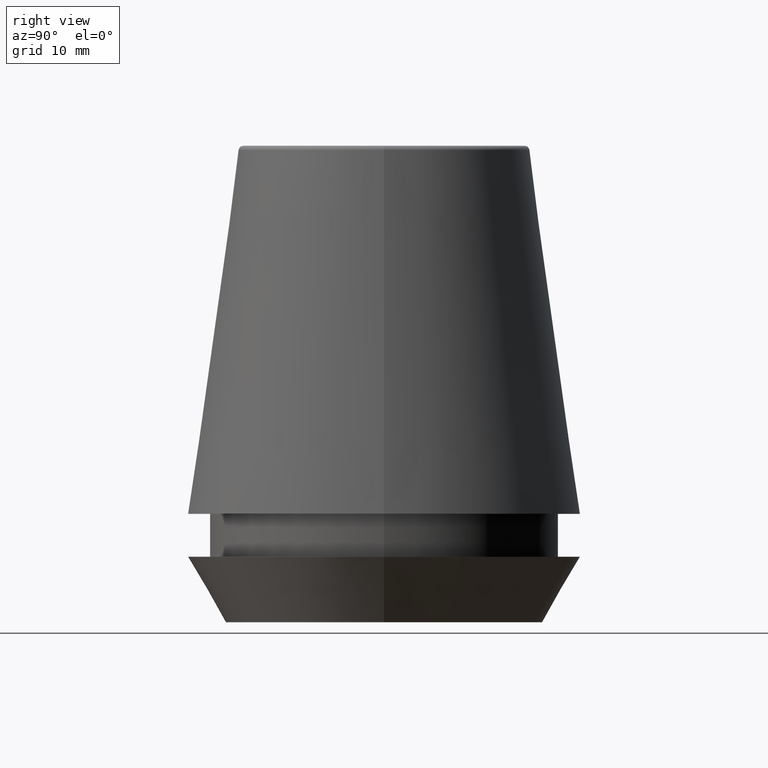
[diagram: clean part render]
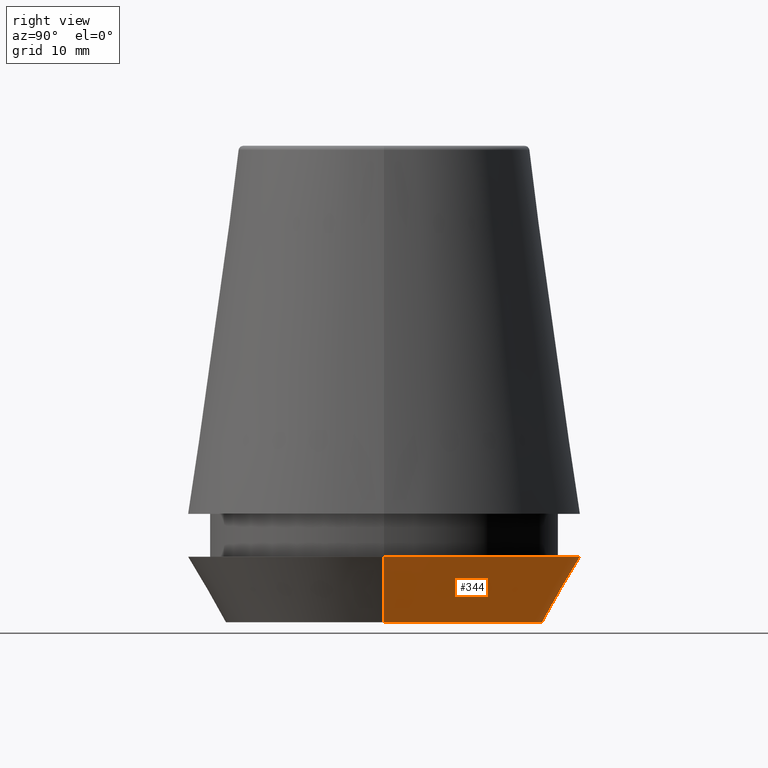
[diagram: same view with one face highlighted and labeled with its STEP entity id]
A machine part, right view. The second image highlights one B-rep face of the part: STEP entity #344.
In plain terms, the highlighted conical surface has half-angle 30 deg.
Its self-contained STEP definition (entity closure, byte-faithful):
#2 = DIRECTION ( 'NONE',  ( -0.0000000000000000000, -0.0000000000000000000, 1.000000000000000000 ) ) ;
#18 = DIRECTION ( 'NONE',  ( -0.0000000000000000000, -0.0000000000000000000, 1.000000000000000000 ) ) ;
#23 = CONICAL_SURFACE ( 'NONE', #377, 13.32457351945710200, 0.5235987755982927100 ) ;
#30 = DIRECTION ( 'NONE',  ( 1.000000000000000000, 0.0000000000000000000, 0.0000000000000000000 ) ) ;
#37 = LINE ( 'NONE', #225, #98 ) ;
#39 = ORIENTED_EDGE ( 'NONE', *, *, #368, .T. ) ;
#51 = AXIS2_PLACEMENT_3D ( 'NONE', #218, #2, #155 ) ;
#59 = DIRECTION ( 'NONE',  ( -0.4999999999999947300, 6.123233995736700700E-017, 0.8660254037844418200 ) ) ;
#74 = CARTESIAN_POINT ( 'NONE',  ( 13.32457351945710200, 0.0000000000000000000, 0.0000000000000000000 ) ) ;
#98 = VECTOR ( 'NONE', #169, 999.9999999999998900 ) ;
#113 = CARTESIAN_POINT ( 'NONE',  ( -16.50000000000000000, 2.020667218593133100E-015, 5.500000000000005300 ) ) ;
#133 = AXIS2_PLACEMENT_3D ( 'NONE', #192, #18, #254 ) ;
#135 = DIRECTION ( 'NONE',  ( -0.0000000000000000000, -0.0000000000000000000, 1.000000000000000000 ) ) ;
#153 = ORIENTED_EDGE ( 'NONE', *, *, #256, .F. ) ;
#155 = DIRECTION ( 'NONE',  ( 1.000000000000000000, 0.0000000000000000000, 0.0000000000000000000 ) ) ;
#166 = VERTEX_POINT ( 'NONE', #113 ) ;
#169 = DIRECTION ( 'NONE',  ( 0.4999999999999947300, 0.0000000000000000000, 0.8660254037844418200 ) ) ;
#174 = CARTESIAN_POINT ( 'NONE',  ( 16.50000000000000000, 0.0000000000000000000, 5.500000000000005300 ) ) ;
#192 = CARTESIAN_POINT ( 'NONE',  ( 0.0000000000000000000, 0.0000000000000000000, 0.0000000000000000000 ) ) ;
#196 = CARTESIAN_POINT ( 'NONE',  ( -13.32457351945710200, 1.631789631060672300E-015, 0.0000000000000000000 ) ) ;
#199 = CARTESIAN_POINT ( 'NONE',  ( 0.0000000000000000000, 0.0000000000000000000, 0.0000000000000000000 ) ) ;
#209 = LINE ( 'NONE', #196, #299 ) ;
#218 = CARTESIAN_POINT ( 'NONE',  ( 0.0000000000000000000, 0.0000000000000000000, 5.500000000000005300 ) ) ;
#225 = CARTESIAN_POINT ( 'NONE',  ( 13.32457351945710200, 0.0000000000000000000, 0.0000000000000000000 ) ) ;
#240 = EDGE_CURVE ( 'NONE', #277, #166, #209, .T. ) ;
#241 = EDGE_LOOP ( 'NONE', ( #39, #346, #301, #153 ) ) ;
#254 = DIRECTION ( 'NONE',  ( 1.000000000000000000, 0.0000000000000000000, 0.0000000000000000000 ) ) ;
#256 = EDGE_CURVE ( 'NONE', #372, #310, #37, .T. ) ;
#262 = FACE_OUTER_BOUND ( 'NONE', #241, .T. ) ;
#277 = VERTEX_POINT ( 'NONE', #294 ) ;
#294 = CARTESIAN_POINT ( 'NONE',  ( -13.32457351945710200, 1.826228424826902600E-015, 0.0000000000000000000 ) ) ;
#299 = VECTOR ( 'NONE', #59, 999.9999999999998900 ) ;
#301 = ORIENTED_EDGE ( 'NONE', *, *, #340, .F. ) ;
#310 = VERTEX_POINT ( 'NONE', #174 ) ;
#340 = EDGE_CURVE ( 'NONE', #310, #166, #381, .T. ) ;
#344 = ADVANCED_FACE ( 'NONE', ( #262 ), #23, .T. ) ;
#346 = ORIENTED_EDGE ( 'NONE', *, *, #240, .T. ) ;
#347 = CIRCLE ( 'NONE', #133, 13.32457351945710200 ) ;
#368 = EDGE_CURVE ( 'NONE', #372, #277, #347, .T. ) ;
#372 = VERTEX_POINT ( 'NONE', #74 ) ;
#377 = AXIS2_PLACEMENT_3D ( 'NONE', #199, #135, #30 ) ;
#381 = CIRCLE ( 'NONE', #51, 16.50000000000000000 ) ;